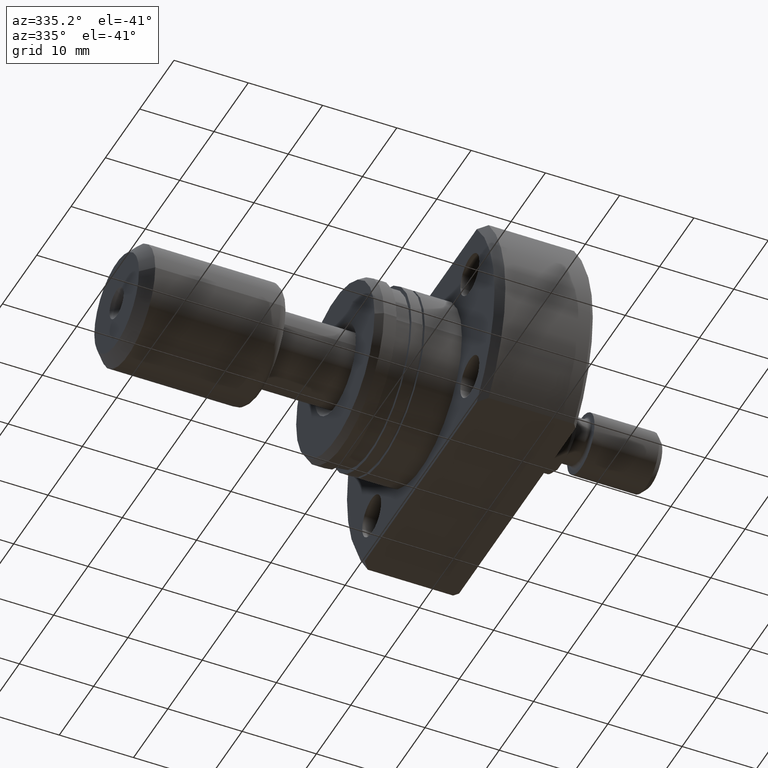
[diagram: clean part render]
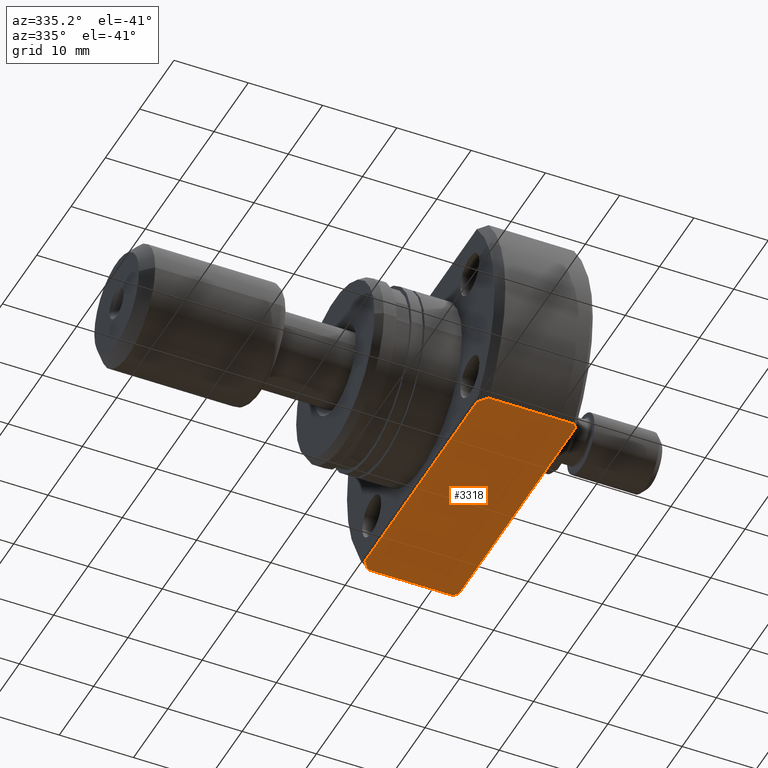
[diagram: same view with one face highlighted and labeled with its STEP entity id]
A machine part, auxiliary view. The second image highlights one B-rep face of the part: STEP entity #3318.
In plain terms, the highlighted planar face has unit normal (0, 0, 1).
Its self-contained STEP definition (entity closure, byte-faithful):
#31 = ORIENTED_EDGE ( 'NONE', *, *, #1993, .F. ) ;
#95 = CARTESIAN_POINT ( 'NONE',  ( 24.16739802011472449, 17.40008086510889740, -14.00000000000000355 ) ) ;
#162 = B_SPLINE_CURVE_WITH_KNOTS ( 'NONE', 3,
 ( #506, #3060, #2751, #223 ),
 .UNSPECIFIED., .F., .F.,
 ( 4, 4 ),
 ( 0.02824287035670664664, 0.02906016577245322530 ),
 .UNSPECIFIED. ) ;
#223 = CARTESIAN_POINT ( 'NONE',  ( 24.50000000000000000, -16.97056274847713553, -14.00000000000000355 ) ) ;
#253 = B_SPLINE_CURVE_WITH_KNOTS ( 'NONE', 3,
 ( #1415, #569, #3475, #1139 ),
 .UNSPECIFIED., .F., .F.,
 ( 4, 4 ),
 ( 0.02825164645976065148, 0.02989446144990337562 ),
 .UNSPECIFIED. ) ;
#332 = DIRECTION ( 'NONE',  ( -4.998558363877804092E-19, 1.000000000000000000, -0.000000000000000000 ) ) ;
#437 = ORIENTED_EDGE ( 'NONE', *, *, #1793, .F. ) ;
#446 = ORIENTED_EDGE ( 'NONE', *, *, #2795, .F. ) ;
#491 = VERTEX_POINT ( 'NONE', #1614 ) ;
#506 = CARTESIAN_POINT ( 'NONE',  ( 24.00000000000007461, -17.61391495380844319, -14.00000000000000711 ) ) ;
#569 = CARTESIAN_POINT ( 'NONE',  ( 12.16342151182557352, 17.18396987891851069, -14.00000000000000355 ) ) ;
#635 = DIRECTION ( 'NONE',  ( 1.000000000000000000, -2.886466111666351885E-14, -0.000000000000000000 ) ) ;
#643 = VERTEX_POINT ( 'NONE', #2439 ) ;
#676 = LINE ( 'NONE', #2983, #2175 ) ;
#677 = LINE ( 'NONE', #2604, #1879 ) ;
#685 = B_SPLINE_CURVE_WITH_KNOTS ( 'NONE', 3,
 ( #2363, #3574, #95, #2376 ),
 .UNSPECIFIED., .F., .F.,
 ( 4, 4 ),
 ( 0.06706314534022636553, 0.06787700449519981638 ),
 .UNSPECIFIED. ) ;
#790 = CARTESIAN_POINT ( 'NONE',  ( 24.50000000000000000, -16.97056274847713553, -14.00000000000000355 ) ) ;
#1015 = VECTOR ( 'NONE', #2043, 1000.000000000000000 ) ;
#1139 = CARTESIAN_POINT ( 'NONE',  ( 11.49999999999978861, 16.31716887208061095, -14.00000000000000355 ) ) ;
#1203 = LINE ( 'NONE', #1744, #1015 ) ;
#1228 = B_SPLINE_CURVE_WITH_KNOTS ( 'NONE', 3,
 ( #1653, #1954, #1370, #2183 ),
 .UNSPECIFIED., .F., .F.,
 ( 4, 4 ),
 ( 0.06624998678667229357, 0.06788534956766803519 ),
 .UNSPECIFIED. ) ;
#1370 = CARTESIAN_POINT ( 'NONE',  ( 12.16362554919181527, -17.18423051607683050, -14.00000000000000355 ) ) ;
#1415 = CARTESIAN_POINT ( 'NONE',  ( 12.49999999999977263, 17.61391495380877714, -14.00000000000000355 ) ) ;
#1526 = EDGE_CURVE ( 'NONE', #643, #1704, #676, .T. ) ;
#1614 = CARTESIAN_POINT ( 'NONE',  ( 11.49999999999978684, -16.31716887208061095, -14.00000000000000355 ) ) ;
#1653 = CARTESIAN_POINT ( 'NONE',  ( 11.49999999999978684, -16.31716887208061095, -14.00000000000000355 ) ) ;
#1704 = VERTEX_POINT ( 'NONE', #2193 ) ;
#1737 = DIRECTION ( 'NONE',  ( 0.000000000000000000, 0.000000000000000000, 1.000000000000000000 ) ) ;
#1744 = CARTESIAN_POINT ( 'NONE',  ( 11.49999999999978506, -11.99999999999999467, -14.00000000000000355 ) ) ;
#1793 = EDGE_CURVE ( 'NONE', #3039, #2241, #162, .T. ) ;
#1800 = CARTESIAN_POINT ( 'NONE',  ( 11.49999999999978861, 16.31716887208061095, -14.00000000000000355 ) ) ;
#1814 = VERTEX_POINT ( 'NONE', #2570 ) ;
#1879 = VECTOR ( 'NONE', #635, 1000.000000000000000 ) ;
#1954 = CARTESIAN_POINT ( 'NONE',  ( 11.83011165526849773, -16.75213407002136279, -14.00000000000000355 ) ) ;
#1973 = VERTEX_POINT ( 'NONE', #1800 ) ;
#1993 = EDGE_CURVE ( 'NONE', #1814, #1704, #685, .T. ) ;
#2043 = DIRECTION ( 'NONE',  ( 4.998558363877804092E-19, -1.000000000000000000, 0.000000000000000000 ) ) ;
#2170 = EDGE_LOOP ( 'NONE', ( #3505, #31, #2790, #437, #446, #3453, #3074, #3594 ) ) ;
#2175 = VECTOR ( 'NONE', #3230, 1000.000000000000000 ) ;
#2183 = CARTESIAN_POINT ( 'NONE',  ( 12.49999999999977263, -17.61391495380810923, -14.00000000000000711 ) ) ;
#2193 = CARTESIAN_POINT ( 'NONE',  ( 24.00000000000007461, 17.61391495380844319, -14.00000000000000355 ) ) ;
#2241 = VERTEX_POINT ( 'NONE', #790 ) ;
#2278 = PLANE ( 'NONE',  #3083 ) ;
#2331 = VERTEX_POINT ( 'NONE', #3384 ) ;
#2355 = VECTOR ( 'NONE', #332, 1000.000000000000000 ) ;
#2363 = CARTESIAN_POINT ( 'NONE',  ( 24.50000000000000000, 16.97056274847713553, -14.00000000000000355 ) ) ;
#2376 = CARTESIAN_POINT ( 'NONE',  ( 24.00000000000007461, 17.61391495380844319, -14.00000000000000355 ) ) ;
#2439 = CARTESIAN_POINT ( 'NONE',  ( 12.49999999999977263, 17.61391495380877714, -14.00000000000000355 ) ) ;
#2552 = LINE ( 'NONE', #3125, #2355 ) ;
#2570 = CARTESIAN_POINT ( 'NONE',  ( 24.50000000000000000, 16.97056274847713553, -14.00000000000000355 ) ) ;
#2604 = CARTESIAN_POINT ( 'NONE',  ( -1.162264728904460753E-12, -17.61391495380775041, -14.00000000000000711 ) ) ;
#2664 = EDGE_CURVE ( 'NONE', #491, #2331, #1228, .T. ) ;
#2689 = CARTESIAN_POINT ( 'NONE',  ( 24.00000000000007461, -17.61391495380844319, -14.00000000000000711 ) ) ;
#2728 = EDGE_CURVE ( 'NONE', #1973, #491, #1203, .T. ) ;
#2751 = CARTESIAN_POINT ( 'NONE',  ( 24.33413566286970564, -17.18558304397054926, -14.00000000000000355 ) ) ;
#2790 = ORIENTED_EDGE ( 'NONE', *, *, #3231, .F. ) ;
#2795 = EDGE_CURVE ( 'NONE', #2331, #3039, #677, .T. ) ;
#2819 = FACE_OUTER_BOUND ( 'NONE', #2170, .T. ) ;
#2876 = DIRECTION ( 'NONE',  ( 1.000000000000000000, 0.000000000000000000, -0.000000000000000000 ) ) ;
#2983 = CARTESIAN_POINT ( 'NONE',  ( -1.422473250300981817E-13, 17.61391495380913597, -14.00000000000000355 ) ) ;
#3039 = VERTEX_POINT ( 'NONE', #2689 ) ;
#3060 = CARTESIAN_POINT ( 'NONE',  ( 24.16744706737967974, -17.40001821217426681, -14.00000000000000355 ) ) ;
#3074 = ORIENTED_EDGE ( 'NONE', *, *, #2728, .F. ) ;
#3083 = AXIS2_PLACEMENT_3D ( 'NONE', #3428, #1737, #2876 ) ;
#3125 = CARTESIAN_POINT ( 'NONE',  ( 24.50000000000000000, -22.00000000000000000, -14.00000000000000355 ) ) ;
#3230 = DIRECTION ( 'NONE',  ( 1.000000000000000000, -2.886466111666351885E-14, -0.000000000000000000 ) ) ;
#3231 = EDGE_CURVE ( 'NONE', #2241, #1814, #2552, .T. ) ;
#3318 = ADVANCED_FACE ( 'NONE', ( #2819 ), #2278, .F. ) ;
#3384 = CARTESIAN_POINT ( 'NONE',  ( 12.49999999999977263, -17.61391495380810923, -14.00000000000000711 ) ) ;
#3428 = CARTESIAN_POINT ( 'NONE',  ( -1.422473250300981817E-13, 17.61391495380915018, -14.00000000000000355 ) ) ;
#3453 = ORIENTED_EDGE ( 'NONE', *, *, #2664, .F. ) ;
#3475 = CARTESIAN_POINT ( 'NONE',  ( 11.82989979264795011, 16.75185491336266352, -14.00000000000000355 ) ) ;
#3505 = ORIENTED_EDGE ( 'NONE', *, *, #1526, .T. ) ;
#3574 = CARTESIAN_POINT ( 'NONE',  ( 24.33408568434172992, 17.18564783425659925, -14.00000000000000355 ) ) ;
#3594 = ORIENTED_EDGE ( 'NONE', *, *, #3620, .F. ) ;
#3620 = EDGE_CURVE ( 'NONE', #643, #1973, #253, .T. ) ;